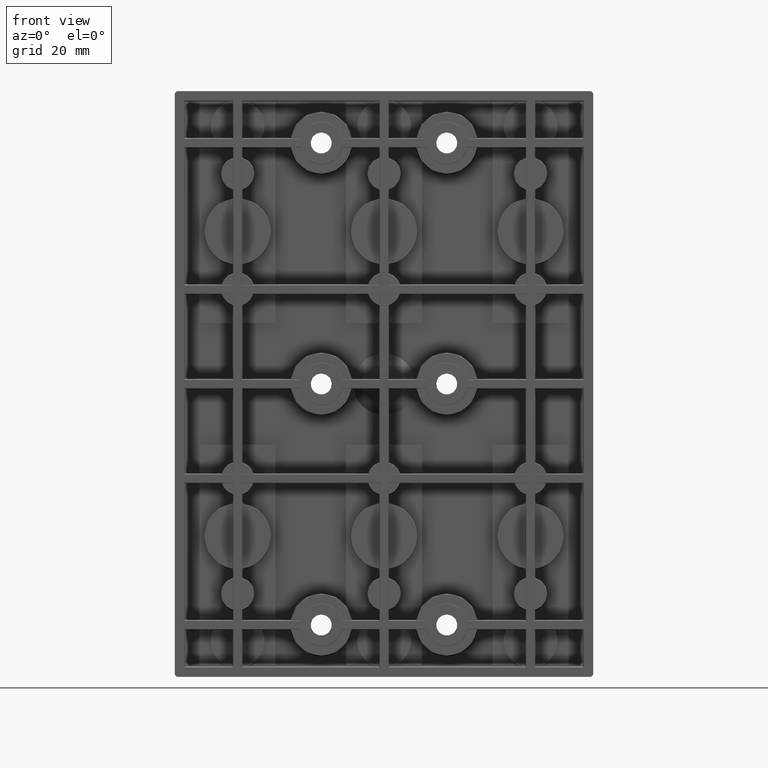
[diagram: clean part render]
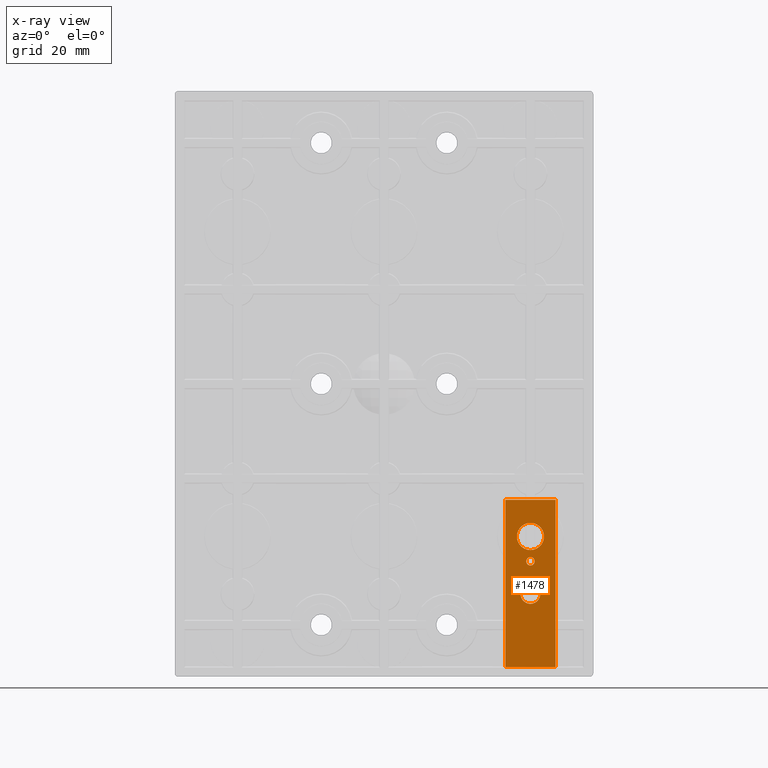
[diagram: x-ray — body ghosted, one internal face saturated and labeled with its STEP entity id]
A machine part, front view, then the same camera in x-ray: the body is ghosted and one INTERNAL B-rep face — a face not visible from any outside direction — is saturated and labeled: STEP entity #1478.
In plain terms, the highlighted planar face has unit normal (0, 1, 0).
Its self-contained STEP definition (entity closure, byte-faithful):
#1478 = ADVANCED_FACE ( 'NONE', ( #8080, #17207, #26308, #35523 ), #10534, .F. ) ;
#2763 = CARTESIAN_POINT ( 'NONE',  ( 1.450000000000000600, 0.8000000000000007100, -1.384999999999999100 ) ) ;
#3852 = EDGE_CURVE ( 'NONE', #35780, #29309, #15430, .T. ) ;
#6193 = LINE ( 'NONE', #19605, #43801 ) ;
#7490 = DIRECTION ( 'NONE',  ( -0.0000000000000000000, -1.000000000000000000, -0.0000000000000000000 ) ) ;
#7652 = ORIENTED_EDGE ( 'NONE', *, *, #14211, .F. ) ;
#8080 = FACE_OUTER_BOUND ( 'NONE', #32427, .T. ) ;
#8900 = ORIENTED_EDGE ( 'NONE', *, *, #23808, .F. ) ;
#9035 = EDGE_CURVE ( 'NONE', #15344, #35780, #30277, .T. ) ;
#9311 = CARTESIAN_POINT ( 'NONE',  ( 2.050000000000000700, 0.8000000000000007100, -2.759999999999998900 ) ) ;
#10534 = PLANE ( 'NONE',  #32011 ) ;
#10845 = ORIENTED_EDGE ( 'NONE', *, *, #9035, .F. ) ;
#11129 = DIRECTION ( 'NONE',  ( 0.0000000000000000000, -0.0000000000000000000, 1.000000000000000000 ) ) ;
#11199 = EDGE_CURVE ( 'NONE', #19941, #19941, #33858, .T. ) ;
#11516 = DIRECTION ( 'NONE',  ( -0.0000000000000000000, -1.000000000000000000, -0.0000000000000000000 ) ) ;
#11648 = DIRECTION ( 'NONE',  ( -0.0000000000000000000, -1.000000000000000000, -0.0000000000000000000 ) ) ;
#12322 = LINE ( 'NONE', #41276, #38721 ) ;
#13052 = VECTOR ( 'NONE', #29856, 39.37007874015748100 ) ;
#13900 = ORIENTED_EDGE ( 'NONE', *, *, #43173, .F. ) ;
#14211 = EDGE_CURVE ( 'NONE', #20217, #15344, #6193, .T. ) ;
#14350 = VECTOR ( 'NONE', #21822, 39.37007874015748100 ) ;
#14969 = EDGE_LOOP ( 'NONE', ( #37834 ) ) ;
#15115 = CARTESIAN_POINT ( 'NONE',  ( 1.750000000000000700, 0.8000000000000007100, -2.069999999999998500 ) ) ;
#15162 = AXIS2_PLACEMENT_3D ( 'NONE', #32246, #11648, #35739 ) ;
#15344 = VERTEX_POINT ( 'NONE', #19046 ) ;
#15430 = LINE ( 'NONE', #18386, #14350 ) ;
#17207 = FACE_BOUND ( 'NONE', #14969, .T. ) ;
#18386 = CARTESIAN_POINT ( 'NONE',  ( 1.450000000000000600, 0.8000000000000007100, -3.384999999999998900 ) ) ;
#18415 = VERTEX_POINT ( 'NONE', #41946 ) ;
#18753 = CARTESIAN_POINT ( 'NONE',  ( 1.450000000000000600, 0.8000000000000007100, -2.759999999999998900 ) ) ;
#19046 = CARTESIAN_POINT ( 'NONE',  ( 2.050000000000000700, 0.8000000000000007100, -1.384999999999999100 ) ) ;
#19605 = CARTESIAN_POINT ( 'NONE',  ( 1.450000000000000600, 0.8000000000000007100, -1.384999999999999100 ) ) ;
#19941 = VERTEX_POINT ( 'NONE', #15115 ) ;
#20217 = VERTEX_POINT ( 'NONE', #2763 ) ;
#21822 = DIRECTION ( 'NONE',  ( -1.000000000000000000, -0.0000000000000000000, 0.0000000000000000000 ) ) ;
#23808 = EDGE_CURVE ( 'NONE', #29309, #20217, #12322, .T. ) ;
#24070 = CIRCLE ( 'NONE', #31206, 0.1622159696280239800 ) ;
#24161 = DIRECTION ( 'NONE',  ( 0.0000000000000000000, 1.000000000000000000, 0.0000000000000000000 ) ) ;
#24961 = EDGE_LOOP ( 'NONE', ( #41754 ) ) ;
#25777 = EDGE_CURVE ( 'NONE', #44010, #44010, #24070, .T. ) ;
#26308 = FACE_BOUND ( 'NONE', #29431, .T. ) ;
#27583 = DIRECTION ( 'NONE',  ( 0.0000000000000000000, -0.0000000000000000000, 1.000000000000000000 ) ) ;
#28038 = CARTESIAN_POINT ( 'NONE',  ( 1.750000000000000700, 0.8000000000000007100, -2.119999999999998800 ) ) ;
#29309 = VERTEX_POINT ( 'NONE', #41114 ) ;
#29431 = EDGE_LOOP ( 'NONE', ( #13900 ) ) ;
#29856 = DIRECTION ( 'NONE',  ( -0.0000000000000000000, 0.0000000000000000000, -1.000000000000000000 ) ) ;
#30277 = LINE ( 'NONE', #9311, #13052 ) ;
#31206 = AXIS2_PLACEMENT_3D ( 'NONE', #32114, #11516, #35597 ) ;
#31519 = DIRECTION ( 'NONE',  ( 0.0000000000000000000, 0.0000000000000000000, 1.000000000000000000 ) ) ;
#32011 = AXIS2_PLACEMENT_3D ( 'NONE', #18753, #24161, #11129 ) ;
#32114 = CARTESIAN_POINT ( 'NONE',  ( 1.750000000000000700, 0.8000000000000007100, -1.822999999999998800 ) ) ;
#32246 = CARTESIAN_POINT ( 'NONE',  ( 1.750000000000000700, 0.8000000000000007100, -2.509999999999999300 ) ) ;
#32427 = EDGE_LOOP ( 'NONE', ( #10845, #7652, #8900, #35273 ) ) ;
#32877 = CIRCLE ( 'NONE', #15162, 0.1177721081762407300 ) ;
#33463 = DIRECTION ( 'NONE',  ( 1.000000000000000000, 0.0000000000000000000, -0.0000000000000000000 ) ) ;
#33858 = CIRCLE ( 'NONE', #43451, 0.05000000000000001000 ) ;
#35273 = ORIENTED_EDGE ( 'NONE', *, *, #3852, .F. ) ;
#35523 = FACE_BOUND ( 'NONE', #24961, .T. ) ;
#35597 = DIRECTION ( 'NONE',  ( 0.0000000000000000000, 0.0000000000000000000, 1.000000000000000000 ) ) ;
#35739 = DIRECTION ( 'NONE',  ( 0.0000000000000000000, 0.0000000000000000000, 1.000000000000000000 ) ) ;
#35780 = VERTEX_POINT ( 'NONE', #43426 ) ;
#37834 = ORIENTED_EDGE ( 'NONE', *, *, #25777, .F. ) ;
#38721 = VECTOR ( 'NONE', #27583, 39.37007874015748100 ) ;
#41114 = CARTESIAN_POINT ( 'NONE',  ( 1.450000000000000600, 0.8000000000000007100, -3.384999999999998900 ) ) ;
#41276 = CARTESIAN_POINT ( 'NONE',  ( 1.450000000000000600, 0.8000000000000007100, -2.759999999999998900 ) ) ;
#41754 = ORIENTED_EDGE ( 'NONE', *, *, #11199, .F. ) ;
#41946 = CARTESIAN_POINT ( 'NONE',  ( 1.750000000000000700, 0.8000000000000007100, -2.392227891823758500 ) ) ;
#42142 = CARTESIAN_POINT ( 'NONE',  ( 1.750000000000000700, 0.8000000000000007100, -1.660784030371974800 ) ) ;
#43173 = EDGE_CURVE ( 'NONE', #18415, #18415, #32877, .T. ) ;
#43426 = CARTESIAN_POINT ( 'NONE',  ( 2.050000000000000700, 0.8000000000000007100, -3.384999999999998900 ) ) ;
#43451 = AXIS2_PLACEMENT_3D ( 'NONE', #28038, #7490, #31519 ) ;
#43801 = VECTOR ( 'NONE', #33463, 39.37007874015748100 ) ;
#44010 = VERTEX_POINT ( 'NONE', #42142 ) ;